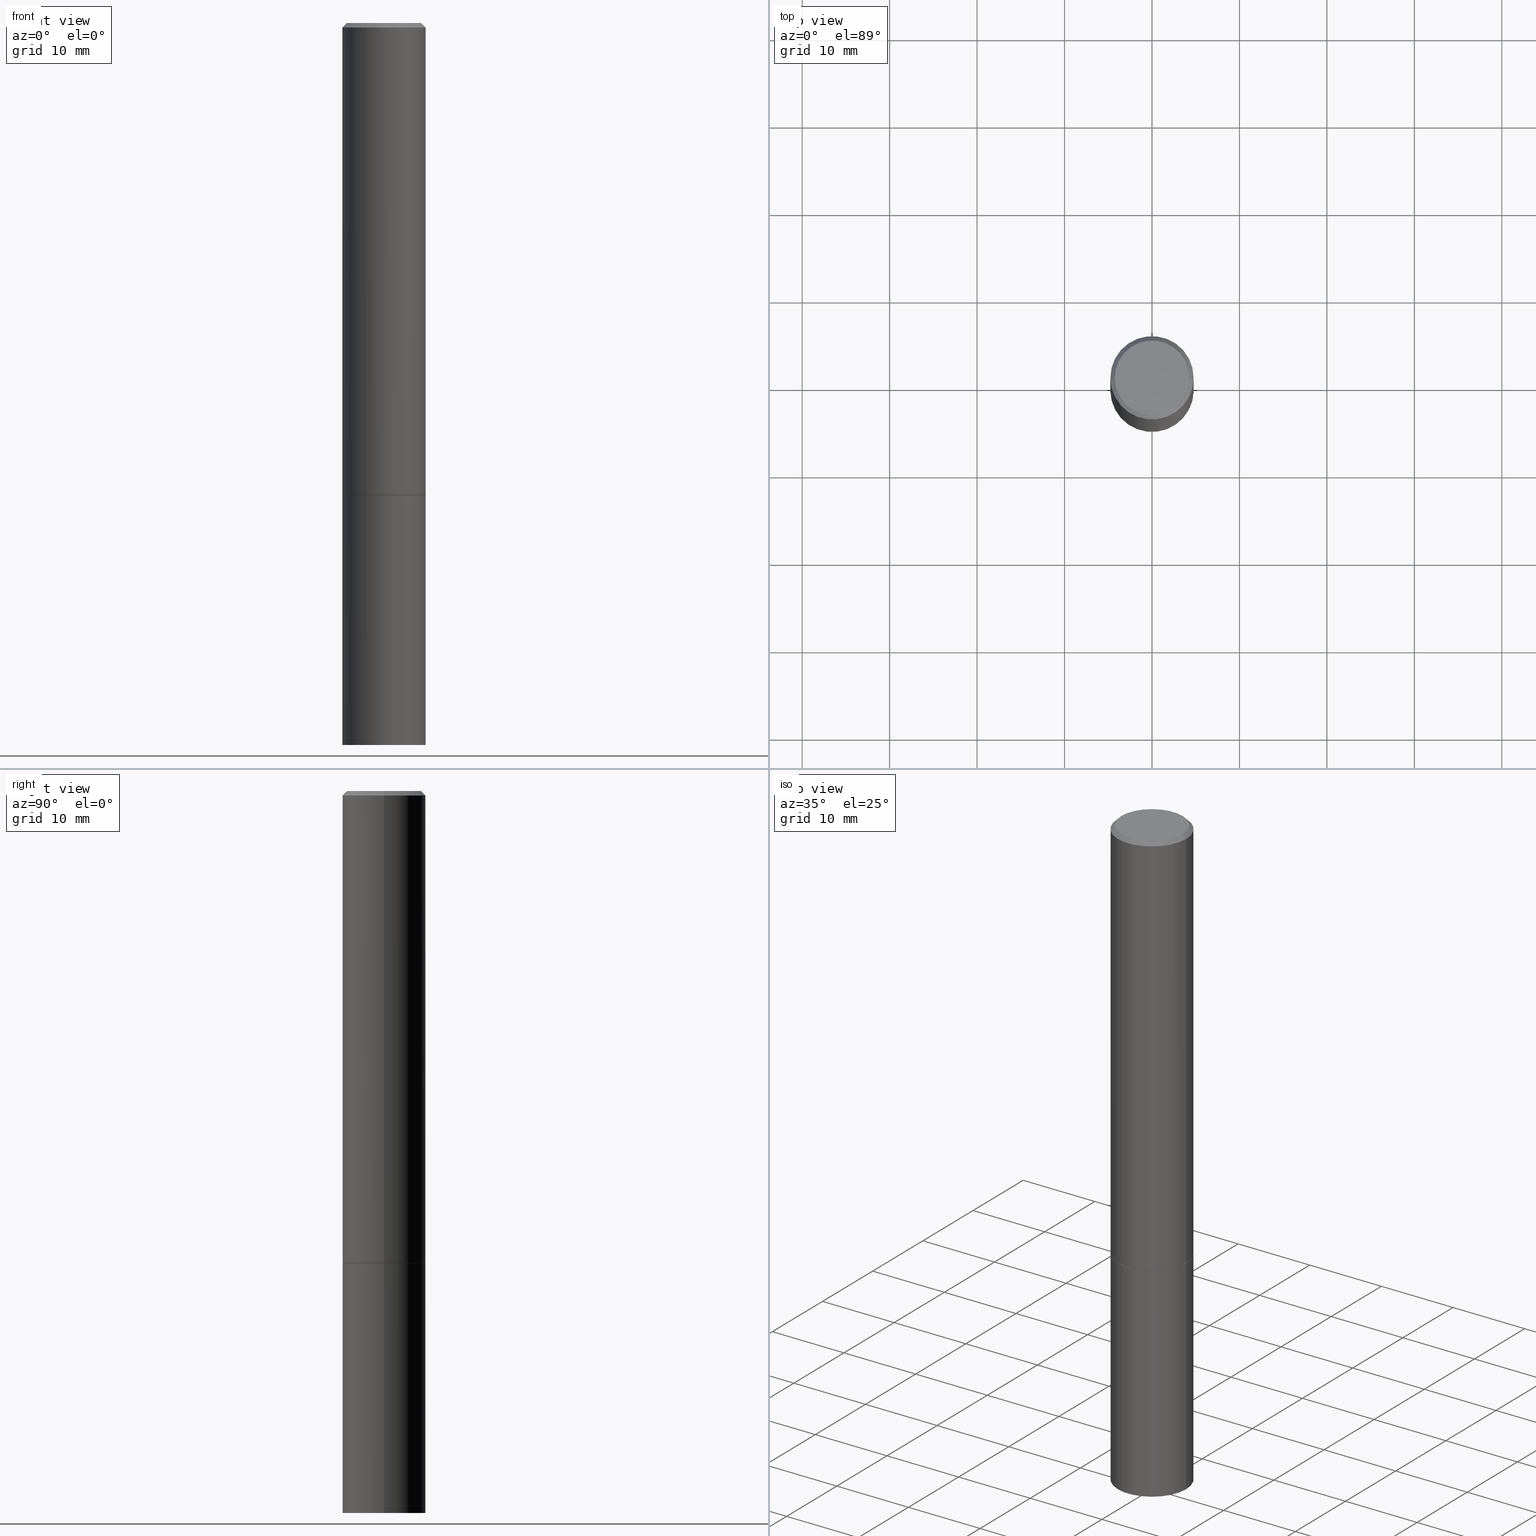
[diagram: canonical four-view strip — front | top / right | iso, engineering-drawing reading convention]
A machine part, canonical four-view strip (front | top / right | iso — engineering-drawing reading convention). The complete STEP part file that produces these views, byte-faithful:
ISO-10303-21;
HEADER;
FILE_DESCRIPTION (( 'STEP AP203' ),
    '1' );
FILE_NAME ('77150.STEP',
    '2024-02-29T15:06:39',
    ( '' ),
    ( '' ),
    'SwSTEP 2.0',
    'SolidWorks 2023',
    '' );
FILE_SCHEMA (( 'CONFIG_CONTROL_DESIGN' ));
ENDSEC;

DATA;
#1 = PRODUCT_DEFINITION ( 'UNKNOWN', '', #6, #158 ) ;
#2 = CARTESIAN_POINT ( 'NONE',  ( -0.1864999999999999714, -6.088937188500874381E-15, -2.125000000000000000 ) ) ;
#3 = DIRECTION ( 'NONE',  ( -2.445468806185136597E-29, 3.491481338843145583E-15, 1.000000000000000000 ) ) ;
#4 = CC_DESIGN_PERSON_AND_ORGANIZATION_ASSIGNMENT ( #261, #24, ( #6 ) ) ;
#5 = CARTESIAN_POINT ( 'NONE',  ( 5.194175744337229665E-29, -7.415906363702840616E-15, -2.123999999999999666 ) ) ;
#6 = PRODUCT_DEFINITION_FORMATION_WITH_SPECIFIED_SOURCE ( 'ANY', '', #233, .NOT_KNOWN. ) ;
#7 = CARTESIAN_POINT ( 'NONE',  ( 5.194175744337229665E-29, -7.415906363702840616E-15, -2.123999999999999666 ) ) ;
#8 = PERSON_AND_ORGANIZATION ( #113, #88 ) ;
#9 = AXIS2_PLACEMENT_3D ( 'NONE', #293, #237, #152 ) ;
#10 = DIRECTION ( 'NONE',  ( 1.000000000000000000, -6.982962677686269077E-15, 0.000000000000000000 ) ) ;
#11 = LOCAL_TIME ( 10, 6, 39.00000000000000000, #266 ) ;
#12 = DATE_AND_TIME ( #239, #11 ) ;
#13 = ORIENTED_EDGE ( 'NONE', *, *, #46, .T. ) ;
#14 = DATE_TIME_ROLE ( 'classification_date' ) ;
#15 = CARTESIAN_POINT ( 'NONE',  ( -0.1875000000000000278, -2.410600365689662531E-15, -2.123999999999999666 ) ) ;
#16 = ORIENTED_EDGE ( 'NONE', *, *, #193, .T. ) ;
#17 = CARTESIAN_POINT ( 'NONE',  ( -0.1874999999999997502, 1.239475875289309935E-15, -0.02000000000000004205 ) ) ;
#18 = ORIENTED_EDGE ( 'NONE', *, *, #361, .T. ) ;
#19 = DIRECTION ( 'NONE',  ( 1.000000000000000000, -6.982962677686265922E-15, 4.875936752492899929E-29 ) ) ;
#20 = ORIENTED_EDGE ( 'NONE', *, *, #351, .F. ) ;
#21 = LINE ( 'NONE', #366, #199 ) ;
#22 = AXIS2_PLACEMENT_3D ( 'NONE', #83, #118, #91 ) ;
#23 = AXIS2_PLACEMENT_3D ( 'NONE', #86, #223, #304 ) ;
#24 = PERSON_AND_ORGANIZATION_ROLE ( 'creator' ) ;
#25 = CARTESIAN_POINT ( 'NONE',  ( 0.1875000000000000278, -1.309305502066175008E-15, 9.142831454617381013E-30 ) ) ;
#26 = CYLINDRICAL_SURFACE ( 'NONE', #294, 0.1875000000000000278 ) ;
#27 = PRODUCT_DEFINITION_SHAPE ( 'NONE', 'NONE',  #1 ) ;
#28 = EDGE_CURVE ( 'NONE', #71, #47, #136, .T. ) ;
#29 = DIRECTION ( 'NONE',  ( -2.445468806185136597E-29, 3.491481338843145583E-15, 1.000000000000000000 ) ) ;
#30 = VERTEX_POINT ( 'NONE', #15 ) ;
#31 = DATE_AND_TIME ( #341, #215 ) ;
#32 = DIRECTION ( 'NONE',  ( 1.000000000000000000, -6.982962677686265922E-15, 4.875936752492899929E-29 ) ) ;
#33 = APPROVAL_STATUS ( 'not_yet_approved' ) ;
#34 = ADVANCED_FACE ( 'NONE', ( #248 ), #213, .F. ) ;
#35 = DIRECTION ( 'NONE',  ( -0.7071067811865465735, 2.468850131082246805E-15, -0.7071067811865484609 ) ) ;
#36 = DIRECTION ( 'NONE',  ( -2.445468806185136597E-29, 3.491481338843145583E-15, 1.000000000000000000 ) ) ;
#37 = PERSON_AND_ORGANIZATION ( #113, #88 ) ;
#38 = CIRCLE ( 'NONE', #94, 0.1864999999999999714 ) ;
#39 = FACE_OUTER_BOUND ( 'NONE', #245, .T. ) ;
#40 = ORIENTED_EDGE ( 'NONE', *, *, #346, .F. ) ;
#41 = ADVANCED_FACE ( 'NONE', ( #309 ), #345, .T. ) ;
#42 = DIRECTION ( 'NONE',  ( -2.445468806185136877E-29, 3.491481338843145188E-15, 1.000000000000000000 ) ) ;
#43 = ORIENTED_EDGE ( 'NONE', *, *, #351, .T. ) ;
#44 =( LENGTH_UNIT ( ) NAMED_UNIT ( * ) SI_UNIT ( $, .METRE. ) );
#45 = AXIS2_PLACEMENT_3D ( 'NONE', #251, #364, #93 ) ;
#46 = EDGE_CURVE ( 'NONE', #299, #30, #227, .T. ) ;
#47 = VERTEX_POINT ( 'NONE', #257 ) ;
#48 = DIRECTION ( 'NONE',  ( 1.000000000000000000, 0.000000000000000000, 0.000000000000000000 ) ) ;
#49 = ORIENTED_EDGE ( 'NONE', *, *, #167, .F. ) ;
#50 = CARTESIAN_POINT ( 'NONE',  ( 0.1874999999999997502, -1.356173001359023494E-15, -0.02000000000000004205 ) ) ;
#51 = DIRECTION ( 'NONE',  ( 0.7071067811865465735, -7.319954787623252890E-15, -0.7071067811865484609 ) ) ;
#52 = CARTESIAN_POINT ( 'NONE',  ( 1.169646248512447820E-15, 0.1674999999999997602, -5.826888680111757675E-16 ) ) ;
#53 = VECTOR ( 'NONE', #42, 39.37007874015748143 ) ;
#54 = APPROVAL_PERSON_ORGANIZATION ( #37, #301, #131 ) ;
#55 = ADVANCED_FACE ( 'NONE', ( #262 ), #241, .T. ) ;
#56 = APPROVAL_DATE_TIME ( #202, #172 ) ;
#57 = CARTESIAN_POINT ( 'NONE',  ( 5.196621213143415268E-29, -7.419397845041683624E-15, -2.125000000000000000 ) ) ;
#58 = EDGE_CURVE ( 'NONE', #276, #277, #234, .T. ) ;
#59 = AXIS2_PLACEMENT_3D ( 'NONE', #57, #260, #110 ) ;
#60 = APPROVAL_PERSON_ORGANIZATION ( #151, #172, #123 ) ;
#61 = DIRECTION ( 'NONE',  ( -2.445468806185136877E-29, 3.491481338843145188E-15, 1.000000000000000000 ) ) ;
#62 = DIRECTION ( 'NONE',  ( -2.445468806185136597E-29, 3.491481338843145583E-15, 1.000000000000000000 ) ) ;
#63 = EDGE_CURVE ( 'NONE', #30, #299, #355, .T. ) ;
#64 = DIRECTION ( 'NONE',  ( -2.445468806185136597E-29, 3.491481338843145583E-15, 1.000000000000000000 ) ) ;
#65 = DIMENSIONAL_EXPONENTS ( 1.000000000000000000, 0.000000000000000000, 0.000000000000000000, 0.000000000000000000, 0.000000000000000000, 0.000000000000000000, 0.000000000000000000 ) ;
#66 = CONICAL_SURFACE ( 'NONE', #275, 0.1864999999999999714, 0.7853981633974311816 ) ;
#67 = APPROVAL_DATE_TIME ( #269, #301 ) ;
#68 = LOCAL_TIME ( 10, 6, 39.00000000000000000, #339 ) ;
#69 = DIRECTION ( 'NONE',  ( 1.000000000000000000, -6.982962677686265133E-15, 0.000000000000000000 ) ) ;
#70 = PRODUCT_RELATED_PRODUCT_CATEGORY ( 'detail', '', ( #233 ) ) ;
#71 = VERTEX_POINT ( 'NONE', #208 ) ;
#72 = VECTOR ( 'NONE', #61, 39.37007874015748143 ) ;
#73 = AXIS2_PLACEMENT_3D ( 'NONE', #135, #337, #160 ) ;
#74 = VERTEX_POINT ( 'NONE', #170 ) ;
#75 = ADVANCED_BREP_SHAPE_REPRESENTATION ( '77150', ( #253, #258, #312 ), #116 ) ;
#76 = ORIENTED_EDGE ( 'NONE', *, *, #125, .F. ) ;
#77 = APPROVAL ( #344, 'UNSPECIFIED' ) ;
#78 = CARTESIAN_POINT ( 'NONE',  ( 5.196621213143415268E-29, -7.419397845041683624E-15, -2.125000000000000000 ) ) ;
#79 = DIRECTION ( 'NONE',  ( -1.000000000000000000, 6.982962677686265922E-15, -4.876176775795935793E-29 ) ) ;
#80 = CARTESIAN_POINT ( 'NONE',  ( 0.000000000000000000, 0.000000000000000000, 0.000000000000000000 ) ) ;
#81 = ORIENTED_EDGE ( 'NONE', *, *, #219, .T. ) ;
#82 = FACE_OUTER_BOUND ( 'NONE', #354, .T. ) ;
#83 = CARTESIAN_POINT ( 'NONE',  ( 1.309305502066254683E-15, 0.1874999999999886757, -3.250000000000000444 ) ) ;
#84 = CARTESIAN_POINT ( 'NONE',  ( -1.043851414335219820E-46, 1.490343170380447200E-32, 4.268512490100411279E-18 ) ) ;
#85 = ADVANCED_FACE ( 'NONE', ( #201 ), #66, .T. ) ;
#86 = CARTESIAN_POINT ( 'NONE',  ( 7.947773620101693940E-29, -1.134731435124022443E-14, -3.250000000000000000 ) ) ;
#87 = VECTOR ( 'NONE', #232, 39.37007874015748143 ) ;
#88 = ORGANIZATION ( 'UNSPECIFIED', 'UNSPECIFIED', '' ) ;
#89 = EDGE_CURVE ( 'NONE', #105, #357, #180, .T. ) ;
#90 = APPROVAL_ROLE ( '' ) ;
#91 = DIRECTION ( 'NONE',  ( -1.000000000000000000, 6.982962677686265922E-15, -4.876176775795935793E-29 ) ) ;
#92 = APPROVAL_STATUS ( 'not_yet_approved' ) ;
#93 = DIRECTION ( 'NONE',  ( -1.000000000000000000, 6.982962677686265133E-15, 0.000000000000000000 ) ) ;
#94 = AXIS2_PLACEMENT_3D ( 'NONE', #265, #36, #10 ) ;
#95 = DIRECTION ( 'NONE',  ( 2.445468806185136597E-29, -3.491481338843145583E-15, -1.000000000000000000 ) ) ;
#96 = PERSON_AND_ORGANIZATION_ROLE ( 'classification_officer' ) ;
#97 = CARTESIAN_POINT ( 'NONE',  ( 0.1874999999999997502, -1.356173001359023494E-15, -0.02000000000000004205 ) ) ;
#98 = AXIS2_PLACEMENT_3D ( 'NONE', #196, #318, #119 ) ;
#99 = LINE ( 'NONE', #272, #204 ) ;
#100 = EDGE_CURVE ( 'NONE', #299, #277, #147, .T. ) ;
#101 = EDGE_LOOP ( 'NONE', ( #40, #130, #306, #126 ) ) ;
#102 = ORIENTED_EDGE ( 'NONE', *, *, #63, .T. ) ;
#103 = VECTOR ( 'NONE', #249, 39.37007874015748854 ) ;
#104 = ORIENTED_EDGE ( 'NONE', *, *, #117, .F. ) ;
#105 = VERTEX_POINT ( 'NONE', #335 ) ;
#106 = DIRECTION ( 'NONE',  ( -1.000000000000000000, 6.982962677686265922E-15, -4.876176775795935793E-29 ) ) ;
#107 = ORIENTED_EDGE ( 'NONE', *, *, #132, .T. ) ;
#108 = DIRECTION ( 'NONE',  ( -2.438088387897960049E-29, 3.491481338843145188E-15, 1.000000000000000000 ) ) ;
#109 = CIRCLE ( 'NONE', #212, 0.1875000000000000278 ) ;
#110 = DIRECTION ( 'NONE',  ( 1.000000000000000000, -6.982962677686266711E-15, 0.000000000000000000 ) ) ;
#111 = DIRECTION ( 'NONE',  ( -2.445468806185136597E-29, 3.491481338843145583E-15, 1.000000000000000000 ) ) ;
#112 = CC_DESIGN_DATE_AND_TIME_ASSIGNMENT ( #12, #14, ( #206 ) ) ;
#113 = PERSON ( 'UNSPECIFIED', 'UNSPECIFIED', 'UNSPECIFIED', ('UNSPECIFIED'), ('UNSPECIFIED'), ('UNSPECIFIED') ) ;
#114 =( NAMED_UNIT ( * ) SI_UNIT ( $, .STERADIAN. ) SOLID_ANGLE_UNIT ( ) );
#115 = VECTOR ( 'NONE', #120, 39.37007874015748143 ) ;
#116 =( GEOMETRIC_REPRESENTATION_CONTEXT ( 3 ) GLOBAL_UNCERTAINTY_ASSIGNED_CONTEXT ( ( #164 ) ) GLOBAL_UNIT_ASSIGNED_CONTEXT ( ( #163, #144, #114 ) ) REPRESENTATION_CONTEXT ( 'NONE', 'WORKASPACE' ) );
#117 = EDGE_CURVE ( 'NONE', #30, #273, #203, .T. ) ;
#118 = DIRECTION ( 'NONE',  ( 2.438088387897960049E-29, -3.491481338843145188E-15, -1.000000000000000000 ) ) ;
#119 = DIRECTION ( 'NONE',  ( 1.000000000000000000, -6.982962677686265133E-15, 0.000000000000000000 ) ) ;
#120 = DIRECTION ( 'NONE',  ( -2.445468806185136877E-29, 3.491481338843145188E-15, 1.000000000000000000 ) ) ;
#121 = AXIS2_PLACEMENT_3D ( 'NONE', #352, #296, #69 ) ;
#122 = APPROVAL_PERSON_ORGANIZATION ( #283, #77, #90 ) ;
#123 = APPROVAL_ROLE ( '' ) ;
#124 = CARTESIAN_POINT ( 'NONE',  ( 5.196621213143415268E-29, -7.419397845041683624E-15, -2.125000000000000000 ) ) ;
#125 = EDGE_CURVE ( 'NONE', #74, #276, #198, .T. ) ;
#126 = ORIENTED_EDGE ( 'NONE', *, *, #63, .F. ) ;
#127 = ADVANCED_FACE ( 'NONE', ( #182 ), #210, .T. ) ;
#128 = CIRCLE ( 'NONE', #23, 0.1875000000000000278 ) ;
#129 = CARTESIAN_POINT ( 'NONE',  ( 0.1864999999999999714, -8.721720384430172617E-15, -2.125000000000000000 ) ) ;
#130 = ORIENTED_EDGE ( 'NONE', *, *, #187, .T. ) ;
#131 = APPROVAL_ROLE ( '' ) ;
#132 = EDGE_CURVE ( 'NONE', #273, #277, #252, .T. ) ;
#133 = EDGE_LOOP ( 'NONE', ( #271, #185, #16, #188 ) ) ;
#134 = CIRCLE ( 'NONE', #121, 0.1874999999999997502 ) ;
#135 = CARTESIAN_POINT ( 'NONE',  ( 5.196621213143415268E-29, -7.419397845041683624E-15, -2.125000000000000000 ) ) ;
#136 = LINE ( 'NONE', #359, #53 ) ;
#137 = DIRECTION ( 'NONE',  ( 1.000000000000000000, -6.982962677686261189E-15, 0.000000000000000000 ) ) ;
#138 = ORIENTED_EDGE ( 'NONE', *, *, #28, .F. ) ;
#139 = CARTESIAN_POINT ( 'NONE',  ( 0.1875000000000000278, -8.728703347107858632E-15, -2.125000000000000000 ) ) ;
#140 = DIRECTION ( 'NONE',  ( 1.000000000000000000, -6.982962677686269077E-15, 0.000000000000000000 ) ) ;
#141 = ADVANCED_FACE ( 'NONE', ( #145 ), #26, .T. ) ;
#142 = DIRECTION ( 'NONE',  ( 1.000000000000000000, -6.982962677686266711E-15, 0.000000000000000000 ) ) ;
#143 = AXIS2_PLACEMENT_3D ( 'NONE', #333, #108, #310 ) ;
#144 =( NAMED_UNIT ( * ) PLANE_ANGLE_UNIT ( ) SI_UNIT ( $, .RADIAN. ) );
#145 = FACE_OUTER_BOUND ( 'NONE', #246, .T. ) ;
#146 = CLOSED_SHELL ( 'NONE', ( #85, #127, #55, #150, #178, #338, #256, #268 ) ) ;
#147 = LINE ( 'NONE', #173, #72 ) ;
#148 = DIRECTION ( 'NONE',  ( 1.000000000000000000, -6.982962677686265922E-15, 4.876176775795935793E-29 ) ) ;
#149 = EDGE_LOOP ( 'NONE', ( #104, #102, #179, #165 ) ) ;
#150 = ADVANCED_FACE ( 'NONE', ( #322 ), #174, .T. ) ;
#151 = PERSON_AND_ORGANIZATION ( #113, #88 ) ;
#152 = DIRECTION ( 'NONE',  ( 1.000000000000000000, -6.982962677686265922E-15, 4.876176775795935793E-29 ) ) ;
#153 = VECTOR ( 'NONE', #51, 39.37007874015748143 ) ;
#154 = ORIENTED_EDGE ( 'NONE', *, *, #308, .T. ) ;
#155 = CALENDAR_DATE ( 2024, 29, 2 ) ;
#156 = CC_DESIGN_PERSON_AND_ORGANIZATION_ASSIGNMENT ( #8, #292, ( #6 ) ) ;
#157 = ORIENTED_EDGE ( 'NONE', *, *, #274, .F. ) ;
#158 = DESIGN_CONTEXT ( 'detailed design', #282, 'design' ) ;
#159 = EDGE_LOOP ( 'NONE', ( #168, #263 ) ) ;
#160 = DIRECTION ( 'NONE',  ( 1.000000000000000000, -6.982962677686269077E-15, 0.000000000000000000 ) ) ;
#161 = ORIENTED_EDGE ( 'NONE', *, *, #274, .T. ) ;
#162 = AXIS2_PLACEMENT_3D ( 'NONE', #291, #3, #32 ) ;
#163 =( CONVERSION_BASED_UNIT ( 'INCH', #358 ) LENGTH_UNIT ( ) NAMED_UNIT ( #65 ) );
#164 = UNCERTAINTY_MEASURE_WITH_UNIT (LENGTH_MEASURE( 1.000000000000000082E-05 ), #163, 'distance_accuracy_value', 'NONE');
#165 = ORIENTED_EDGE ( 'NONE', *, *, #132, .F. ) ;
#166 = DIRECTION ( 'NONE',  ( 1.000000000000000000, -6.982962677686265922E-15, 4.876176775795935793E-29 ) ) ;
#167 = EDGE_CURVE ( 'NONE', #357, #47, #222, .T. ) ;
#168 = ORIENTED_EDGE ( 'NONE', *, *, #219, .F. ) ;
#169 = CARTESIAN_POINT ( 'NONE',  ( 7.947773620101693940E-29, -1.134731435124022443E-14, -3.250000000000000000 ) ) ;
#170 = CARTESIAN_POINT ( 'NONE',  ( -0.1674999999999997602, 1.204561061900878878E-15, 4.268512490092109750E-18 ) ) ;
#171 = CLOSED_SHELL ( 'NONE', ( #141, #41, #34, #244 ) ) ;
#172 = APPROVAL ( #92, 'UNSPECIFIED' ) ;
#173 = CARTESIAN_POINT ( 'NONE',  ( 0.1874999999999998890, -1.309305502066174022E-15, 9.142831454617374006E-30 ) ) ;
#174 = CONICAL_SURFACE ( 'NONE', #45, 0.1874999999999997502, 0.7853981633974469467 ) ;
#175 = CC_DESIGN_SECURITY_CLASSIFICATION ( #206, ( #6 ) ) ;
#176 = APPLICATION_PROTOCOL_DEFINITION ( 'international standard', 'config_control_design', 1994, #282 ) ;
#177 = DIRECTION ( 'NONE',  ( -1.000000000000000000, 6.982962677686265133E-15, 0.000000000000000000 ) ) ;
#178 = ADVANCED_FACE ( 'NONE', ( #224 ), #289, .T. ) ;
#179 = ORIENTED_EDGE ( 'NONE', *, *, #100, .T. ) ;
#180 = LINE ( 'NONE', #25, #115 ) ;
#181 = SHAPE_DEFINITION_REPRESENTATION ( #27, #75 ) ;
#182 = FACE_OUTER_BOUND ( 'NONE', #250, .T. ) ;
#183 = EDGE_LOOP ( 'NONE', ( #238, #18 ) ) ;
#184 = DIRECTION ( 'NONE',  ( 1.000000000000000000, -6.982962677686269077E-15, 0.000000000000000000 ) ) ;
#185 = ORIENTED_EDGE ( 'NONE', *, *, #58, .T. ) ;
#186 = VERTEX_POINT ( 'NONE', #2 ) ;
#187 = EDGE_CURVE ( 'NONE', #186, #221, #281, .T. ) ;
#188 = ORIENTED_EDGE ( 'NONE', *, *, #205, .F. ) ;
#189 = FACE_OUTER_BOUND ( 'NONE', #101, .T. ) ;
#190 = EDGE_LOOP ( 'NONE', ( #331, #76, #279, #107 ) ) ;
#191 = AXIS2_PLACEMENT_3D ( 'NONE', #7, #64, #320 ) ;
#192 = DIRECTION ( 'NONE',  ( 0.000000000000000000, 0.000000000000000000, 1.000000000000000000 ) ) ;
#193 = EDGE_CURVE ( 'NONE', #277, #273, #134, .T. ) ;
#194 = ORIENTED_EDGE ( 'NONE', *, *, #46, .F. ) ;
#195 = DIRECTION ( 'NONE',  ( 2.438088387897960049E-29, -3.491481338843145188E-15, -1.000000000000000000 ) ) ;
#196 = CARTESIAN_POINT ( 'NONE',  ( 4.890937612370283668E-31, -6.982962677686305168E-17, -0.02000000000000004205 ) ) ;
#197 = COORDINATED_UNIVERSAL_TIME_OFFSET ( 5, 0, .BEHIND. ) ;
#198 = CIRCLE ( 'NONE', #162, 0.1674999999999997602 ) ;
#199 = VECTOR ( 'NONE', #217, 39.37007874015748854 ) ;
#200 = PERSON_AND_ORGANIZATION ( #113, #88 ) ;
#201 = FACE_OUTER_BOUND ( 'NONE', #305, .T. ) ;
#202 = DATE_AND_TIME ( #313, #317 ) ;
#203 = LINE ( 'NONE', #315, #87 ) ;
#204 = VECTOR ( 'NONE', #35, 39.37007874015748143 ) ;
#205 = EDGE_CURVE ( 'NONE', #74, #273, #99, .T. ) ;
#206 = SECURITY_CLASSIFICATION ( '', '', #209 ) ;
#207 = CALENDAR_DATE ( 2024, 29, 2 ) ;
#208 = CARTESIAN_POINT ( 'NONE',  ( -0.1875000000000000278, -8.051088468590765387E-15, -3.250000000000000000 ) ) ;
#209 = SECURITY_CLASSIFICATION_LEVEL ( 'unclassified' ) ;
#210 = CYLINDRICAL_SURFACE ( 'NONE', #9, 0.1874999999999998890 ) ;
#211 = CC_DESIGN_PERSON_AND_ORGANIZATION_ASSIGNMENT ( #200, #319, ( #1 ) ) ;
#212 = AXIS2_PLACEMENT_3D ( 'NONE', #78, #280, #142 ) ;
#213 = PLANE ( 'NONE',  #311 ) ;
#214 = ORIENTED_EDGE ( 'NONE', *, *, #334, .F. ) ;
#215 = LOCAL_TIME ( 10, 6, 39.00000000000000000, #197 ) ;
#216 = ORIENTED_EDGE ( 'NONE', *, *, #28, .T. ) ;
#217 = DIRECTION ( 'NONE',  ( 0.7071067811865353603, -2.468850131082130054E-15, 0.7071067811865595631 ) ) ;
#218 = ORIENTED_EDGE ( 'NONE', *, *, #361, .F. ) ;
#219 = EDGE_CURVE ( 'NONE', #221, #186, #38, .T. ) ;
#220 = APPLICATION_PROTOCOL_DEFINITION ( 'international standard', 'config_control_design', 1994, #330 ) ;
#221 = VERTEX_POINT ( 'NONE', #129 ) ;
#222 = CIRCLE ( 'NONE', #59, 0.1875000000000000278 ) ;
#223 = DIRECTION ( 'NONE',  ( -2.445468806185136597E-29, 3.491481338843145583E-15, 1.000000000000000000 ) ) ;
#224 = FACE_OUTER_BOUND ( 'NONE', #149, .T. ) ;
#225 = CARTESIAN_POINT ( 'NONE',  ( 0.1875000000000000278, -8.725211865769015625E-15, -2.123999999999999666 ) ) ;
#226 = CC_DESIGN_PERSON_AND_ORGANIZATION_ASSIGNMENT ( #321, #96, ( #206 ) ) ;
#227 = CIRCLE ( 'NONE', #191, 0.1875000000000000278 ) ;
#228 = CIRCLE ( 'NONE', #242, 0.1875000000000000278 ) ;
#229 = CARTESIAN_POINT ( 'NONE',  ( 4.890937612370283668E-31, -6.982962677686305168E-17, -0.02000000000000004205 ) ) ;
#230 = CC_DESIGN_DATE_AND_TIME_ASSIGNMENT ( #31, #286, ( #1 ) ) ;
#231 = DATE_AND_TIME ( #207, #68 ) ;
#232 = DIRECTION ( 'NONE',  ( -2.445468806185136877E-29, 3.491481338843145188E-15, 1.000000000000000000 ) ) ;
#233 = PRODUCT ( '77150', '77150', '', ( #290 ) ) ;
#234 = LINE ( 'NONE', #97, #153 ) ;
#235 = AXIS2_PLACEMENT_3D ( 'NONE', #229, #95, #177 ) ;
#236 = LOCAL_TIME ( 10, 6, 39.00000000000000000, #298 ) ;
#237 = DIRECTION ( 'NONE',  ( -2.445468806185136597E-29, 3.491481338843145583E-15, 1.000000000000000000 ) ) ;
#238 = ORIENTED_EDGE ( 'NONE', *, *, #167, .T. ) ;
#239 = CALENDAR_DATE ( 2024, 29, 2 ) ;
#240 = CARTESIAN_POINT ( 'NONE',  ( 5.196621213143415268E-29, -7.419397845041683624E-15, -2.125000000000000000 ) ) ;
#241 = CONICAL_SURFACE ( 'NONE', #235, 0.1874999999999997502, 0.7853981633974469467 ) ;
#242 = AXIS2_PLACEMENT_3D ( 'NONE', #169, #111, #137 ) ;
#243 = ORIENTED_EDGE ( 'NONE', *, *, #346, .T. ) ;
#244 = ADVANCED_FACE ( 'NONE', ( #39 ), #270, .T. ) ;
#245 = EDGE_LOOP ( 'NONE', ( #138, #161, #360, #218 ) ) ;
#246 = EDGE_LOOP ( 'NONE', ( #43, #216, #49, #303 ) ) ;
#247 = CARTESIAN_POINT ( 'NONE',  ( 0.000000000000000000, 0.000000000000000000, 0.000000000000000000 ) ) ;
#248 = FACE_OUTER_BOUND ( 'NONE', #183, .T. ) ;
#249 = DIRECTION ( 'NONE',  ( -0.7071067811865353603, 7.493145998870309984E-15, 0.7071067811865595631 ) ) ;
#250 = EDGE_LOOP ( 'NONE', ( #13, #300, #327, #349 ) ) ;
#251 = CARTESIAN_POINT ( 'NONE',  ( 4.890937612370283668E-31, -6.982962677686305168E-17, -0.02000000000000004205 ) ) ;
#252 = CIRCLE ( 'NONE', #98, 0.1874999999999997502 ) ;
#253 = MANIFOLD_SOLID_BREP ( 'Body-Move/Copy2[1]', #171 ) ;
#254 = CC_DESIGN_APPROVAL ( #172, ( #6 ) ) ;
#255 = PLANE ( 'NONE',  #332 ) ;
#256 = ADVANCED_FACE ( 'NONE', ( #278 ), #328, .F. ) ;
#257 = CARTESIAN_POINT ( 'NONE',  ( -0.1875000000000000278, -8.051088468590765387E-15, -2.125000000000000000 ) ) ;
#258 = MANIFOLD_SOLID_BREP ( 'Body-Move/Copy2[2]', #146 ) ;
#259 = PERSON_AND_ORGANIZATION ( #113, #88 ) ;
#260 = DIRECTION ( 'NONE',  ( -2.445468806185136597E-29, 3.491481338843145583E-15, 1.000000000000000000 ) ) ;
#261 = PERSON_AND_ORGANIZATION ( #113, #88 ) ;
#262 = FACE_OUTER_BOUND ( 'NONE', #133, .T. ) ;
#263 = ORIENTED_EDGE ( 'NONE', *, *, #187, .F. ) ;
#264 = CARTESIAN_POINT ( 'NONE',  ( 0.000000000000000000, 0.000000000000000000, 0.000000000000000000 ) ) ;
#265 = CARTESIAN_POINT ( 'NONE',  ( 5.196621213143415268E-29, -7.419397845041683624E-15, -2.125000000000000000 ) ) ;
#266 = COORDINATED_UNIVERSAL_TIME_OFFSET ( 5, 0, .BEHIND. ) ;
#267 = CIRCLE ( 'NONE', #356, 0.1674999999999997602 ) ;
#268 = ADVANCED_FACE ( 'NONE', ( #82 ), #255, .F. ) ;
#269 = DATE_AND_TIME ( #155, #236 ) ;
#270 = CYLINDRICAL_SURFACE ( 'NONE', #324, 0.1875000000000000278 ) ;
#271 = ORIENTED_EDGE ( 'NONE', *, *, #308, .F. ) ;
#272 = CARTESIAN_POINT ( 'NONE',  ( -0.1874999999999997502, 1.239475875289309935E-15, -0.02000000000000004205 ) ) ;
#273 = VERTEX_POINT ( 'NONE', #17 ) ;
#274 = EDGE_CURVE ( 'NONE', #71, #105, #228, .T. ) ;
#275 = AXIS2_PLACEMENT_3D ( 'NONE', #124, #284, #140 ) ;
#276 = VERTEX_POINT ( 'NONE', #307 ) ;
#277 = VERTEX_POINT ( 'NONE', #50 ) ;
#278 = FACE_OUTER_BOUND ( 'NONE', #159, .T. ) ;
#279 = ORIENTED_EDGE ( 'NONE', *, *, #205, .T. ) ;
#280 = DIRECTION ( 'NONE',  ( -2.445468806185136597E-29, 3.491481338843145583E-15, 1.000000000000000000 ) ) ;
#281 = CIRCLE ( 'NONE', #343, 0.1864999999999999714 ) ;
#282 = APPLICATION_CONTEXT ( 'configuration controlled 3d designs of mechanical parts and assemblies' ) ;
#283 = PERSON_AND_ORGANIZATION ( #113, #88 ) ;
#284 = DIRECTION ( 'NONE',  ( -2.445468806185136597E-29, 3.491481338843145583E-15, 1.000000000000000000 ) ) ;
#285 = AXIS2_PLACEMENT_3D ( 'NONE', #5, #62, #340 ) ;
#286 = DATE_TIME_ROLE ( 'creation_date' ) ;
#287 = CONICAL_SURFACE ( 'NONE', #73, 0.1864999999999999714, 0.7853981633974311816 ) ;
#288 = CARTESIAN_POINT ( 'NONE',  ( 0.000000000000000000, 0.000000000000000000, 0.000000000000000000 ) ) ;
#289 = CYLINDRICAL_SURFACE ( 'NONE', #363, 0.1874999999999998890 ) ;
#290 = MECHANICAL_CONTEXT ( 'NONE', #330, 'mechanical' ) ;
#291 = CARTESIAN_POINT ( 'NONE',  ( -1.043851414335219820E-46, 1.490343170380447200E-32, 4.268512490100411279E-18 ) ) ;
#292 = PERSON_AND_ORGANIZATION_ROLE ( 'design_supplier' ) ;
#293 = CARTESIAN_POINT ( 'NONE',  ( 0.000000000000000000, 0.000000000000000000, 0.000000000000000000 ) ) ;
#294 = AXIS2_PLACEMENT_3D ( 'NONE', #264, #348, #342 ) ;
#295 = CC_DESIGN_APPROVAL ( #77, ( #1 ) ) ;
#296 = DIRECTION ( 'NONE',  ( -2.445468806185136597E-29, 3.491481338843145583E-15, 1.000000000000000000 ) ) ;
#297 = CC_DESIGN_PERSON_AND_ORGANIZATION_ASSIGNMENT ( #259, #314, ( #233 ) ) ;
#298 = COORDINATED_UNIVERSAL_TIME_OFFSET ( 5, 0, .BEHIND. ) ;
#299 = VERTEX_POINT ( 'NONE', #225 ) ;
#300 = ORIENTED_EDGE ( 'NONE', *, *, #117, .T. ) ;
#301 = APPROVAL ( #33, 'UNSPECIFIED' ) ;
#302 = LINE ( 'NONE', #365, #103 ) ;
#303 = ORIENTED_EDGE ( 'NONE', *, *, #89, .F. ) ;
#304 = DIRECTION ( 'NONE',  ( 1.000000000000000000, -6.982962677686261189E-15, 0.000000000000000000 ) ) ;
#305 = EDGE_LOOP ( 'NONE', ( #81, #243, #194, #214 ) ) ;
#306 = ORIENTED_EDGE ( 'NONE', *, *, #334, .T. ) ;
#307 = CARTESIAN_POINT ( 'NONE',  ( 0.1674999999999997602, -1.252653207992876711E-15, 4.268512490108880748E-18 ) ) ;
#308 = EDGE_CURVE ( 'NONE', #276, #74, #267, .T. ) ;
#309 = FACE_OUTER_BOUND ( 'NONE', #326, .T. ) ;
#310 = DIRECTION ( 'NONE',  ( 1.000000000000000000, -6.982962677686265922E-15, 4.876176775795935793E-29 ) ) ;
#311 = AXIS2_PLACEMENT_3D ( 'NONE', #329, #323, #79 ) ;
#312 = AXIS2_PLACEMENT_3D ( 'NONE', #80, #192, #48 ) ;
#313 = CALENDAR_DATE ( 2024, 29, 2 ) ;
#314 = PERSON_AND_ORGANIZATION_ROLE ( 'design_owner' ) ;
#315 = CARTESIAN_POINT ( 'NONE',  ( -0.1874999999999998890, 1.332267629550187060E-15, -9.223003294227942385E-30 ) ) ;
#316 = APPROVAL_DATE_TIME ( #231, #77 ) ;
#317 = LOCAL_TIME ( 10, 6, 39.00000000000000000, #347 ) ;
#318 = DIRECTION ( 'NONE',  ( -2.445468806185136597E-29, 3.491481338843145583E-15, 1.000000000000000000 ) ) ;
#319 = PERSON_AND_ORGANIZATION_ROLE ( 'creator' ) ;
#320 = DIRECTION ( 'NONE',  ( 1.000000000000000000, -6.982962677686266711E-15, 0.000000000000000000 ) ) ;
#321 = PERSON_AND_ORGANIZATION ( #113, #88 ) ;
#322 = FACE_OUTER_BOUND ( 'NONE', #190, .T. ) ;
#323 = DIRECTION ( 'NONE',  ( 2.438088387897960049E-29, -3.491481338843145188E-15, -1.000000000000000000 ) ) ;
#324 = AXIS2_PLACEMENT_3D ( 'NONE', #247, #362, #166 ) ;
#325 = CC_DESIGN_APPROVAL ( #301, ( #206 ) ) ;
#326 = EDGE_LOOP ( 'NONE', ( #20, #157 ) ) ;
#327 = ORIENTED_EDGE ( 'NONE', *, *, #193, .F. ) ;
#328 = PLANE ( 'NONE',  #143 ) ;
#329 = CARTESIAN_POINT ( 'NONE',  ( 1.309305502066226876E-15, 0.1874999999999926170, -2.125000000000000444 ) ) ;
#330 = APPLICATION_CONTEXT ( 'configuration controlled 3d designs of mechanical parts and assemblies' ) ;
#331 = ORIENTED_EDGE ( 'NONE', *, *, #58, .F. ) ;
#332 = AXIS2_PLACEMENT_3D ( 'NONE', #52, #195, #106 ) ;
#333 = CARTESIAN_POINT ( 'NONE',  ( 5.196621213143415268E-29, -7.419397845041683624E-15, -2.125000000000000000 ) ) ;
#334 = EDGE_CURVE ( 'NONE', #221, #299, #21, .T. ) ;
#335 = CARTESIAN_POINT ( 'NONE',  ( 0.1875000000000000278, -1.265661985330639786E-14, -3.250000000000000000 ) ) ;
#336 = DIRECTION ( 'NONE',  ( -2.445468806185136597E-29, 3.491481338843145583E-15, 1.000000000000000000 ) ) ;
#337 = DIRECTION ( 'NONE',  ( -2.445468806185136597E-29, 3.491481338843145583E-15, 1.000000000000000000 ) ) ;
#338 = ADVANCED_FACE ( 'NONE', ( #189 ), #287, .T. ) ;
#339 = COORDINATED_UNIVERSAL_TIME_OFFSET ( 5, 0, .BEHIND. ) ;
#340 = DIRECTION ( 'NONE',  ( 1.000000000000000000, -6.982962677686266711E-15, 0.000000000000000000 ) ) ;
#341 = CALENDAR_DATE ( 2024, 29, 2 ) ;
#342 = DIRECTION ( 'NONE',  ( 1.000000000000000000, -6.982962677686265922E-15, 4.876176775795935793E-29 ) ) ;
#343 = AXIS2_PLACEMENT_3D ( 'NONE', #240, #350, #184 ) ;
#344 = APPROVAL_STATUS ( 'not_yet_approved' ) ;
#345 = PLANE ( 'NONE',  #22 ) ;
#346 = EDGE_CURVE ( 'NONE', #186, #30, #302, .T. ) ;
#347 = COORDINATED_UNIVERSAL_TIME_OFFSET ( 5, 0, .BEHIND. ) ;
#348 = DIRECTION ( 'NONE',  ( -2.445468806185136597E-29, 3.491481338843145583E-15, 1.000000000000000000 ) ) ;
#349 = ORIENTED_EDGE ( 'NONE', *, *, #100, .F. ) ;
#350 = DIRECTION ( 'NONE',  ( -2.445468806185136597E-29, 3.491481338843145583E-15, 1.000000000000000000 ) ) ;
#351 = EDGE_CURVE ( 'NONE', #105, #71, #128, .T. ) ;
#352 = CARTESIAN_POINT ( 'NONE',  ( 4.890937612370283668E-31, -6.982962677686305168E-17, -0.02000000000000004205 ) ) ;
#353 = ORIENTED_EDGE ( 'NONE', *, *, #125, .T. ) ;
#354 = EDGE_LOOP ( 'NONE', ( #353, #154 ) ) ;
#355 = CIRCLE ( 'NONE', #285, 0.1875000000000000278 ) ;
#356 = AXIS2_PLACEMENT_3D ( 'NONE', #84, #336, #19 ) ;
#357 = VERTEX_POINT ( 'NONE', #139 ) ;
#358 = LENGTH_MEASURE_WITH_UNIT ( LENGTH_MEASURE( 0.02539999999999999897 ), #44 );
#359 = CARTESIAN_POINT ( 'NONE',  ( -0.1875000000000000278, 1.332267629550188046E-15, -9.223003294227947991E-30 ) ) ;
#360 = ORIENTED_EDGE ( 'NONE', *, *, #89, .T. ) ;
#361 = EDGE_CURVE ( 'NONE', #47, #357, #109, .T. ) ;
#362 = DIRECTION ( 'NONE',  ( -2.445468806185136597E-29, 3.491481338843145583E-15, 1.000000000000000000 ) ) ;
#363 = AXIS2_PLACEMENT_3D ( 'NONE', #288, #29, #148 ) ;
#364 = DIRECTION ( 'NONE',  ( 2.445468806185136597E-29, -3.491481338843145583E-15, -1.000000000000000000 ) ) ;
#365 = CARTESIAN_POINT ( 'NONE',  ( -0.1864999999999999714, -6.094235642849095994E-15, -2.125000000000000000 ) ) ;
#366 = CARTESIAN_POINT ( 'NONE',  ( 0.1864999999999999714, -8.721720384430172617E-15, -2.125000000000000000 ) ) ;
ENDSEC;
END-ISO-10303-21;
